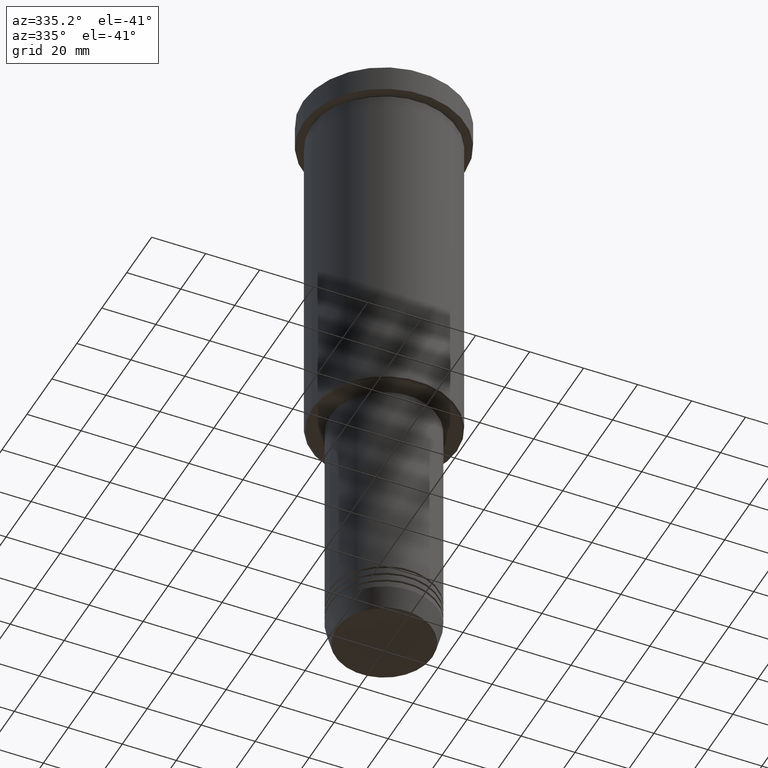
[diagram: clean part render]
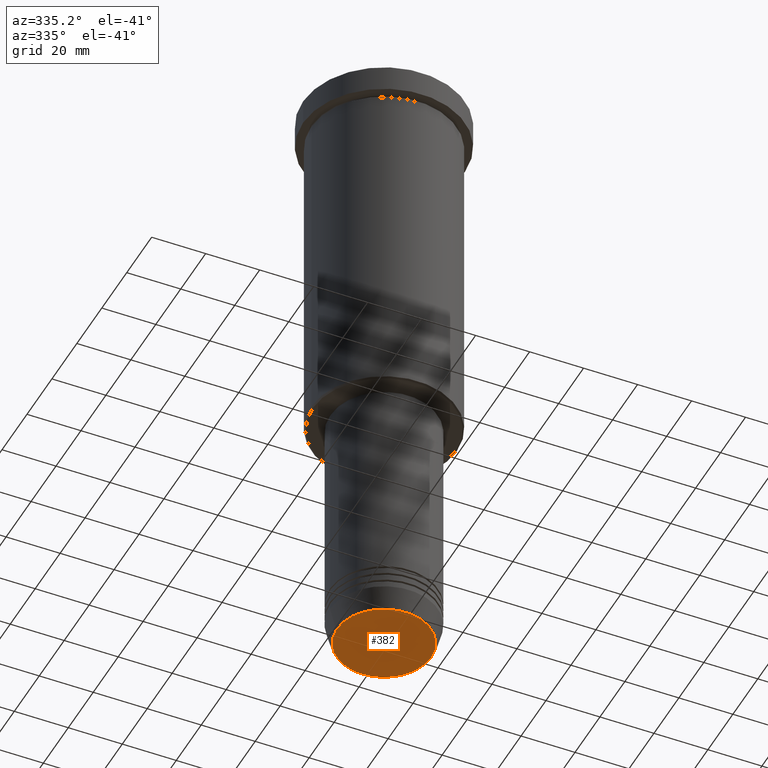
[diagram: same view with one face highlighted and labeled with its STEP entity id]
A machine part, auxiliary view. The second image highlights one B-rep face of the part: STEP entity #382.
In plain terms, the highlighted planar face has unit normal (0, -0, 1).
Its self-contained STEP definition (entity closure, byte-faithful):
#173 = VERTEX_POINT ( 'NONE', #824 ) ;
#198 = DIRECTION ( 'NONE',  ( 1.000000000000000000, 0.000000000000000000, 0.000000000000000000 ) ) ;
#239 = AXIS2_PLACEMENT_3D ( 'NONE', #662, #587, #327 ) ;
#255 = FACE_OUTER_BOUND ( 'NONE', #1021, .T. ) ;
#327 = DIRECTION ( 'NONE',  ( 1.000000000000000000, 0.000000000000000000, 0.000000000000000000 ) ) ;
#351 = AXIS2_PLACEMENT_3D ( 'NONE', #596, #989, #610 ) ;
#382 = ADVANCED_FACE ( 'NONE', ( #255 ), #626, .F. ) ;
#423 = ORIENTED_EDGE ( 'NONE', *, *, #1004, .T. ) ;
#432 = VERTEX_POINT ( 'NONE', #535 ) ;
#450 = AXIS2_PLACEMENT_3D ( 'NONE', #810, #629, #198 ) ;
#535 = CARTESIAN_POINT ( 'NONE',  ( 17.47274296656154036, 0.000000000000000000, -230.9999999999999716 ) ) ;
#543 = CIRCLE ( 'NONE', #450, 17.47274296656154036 ) ;
#587 = DIRECTION ( 'NONE',  ( 0.000000000000000000, 0.000000000000000000, -1.000000000000000000 ) ) ;
#596 = CARTESIAN_POINT ( 'NONE',  ( 0.000000000000000000, 0.000000000000000000, -230.9999999999999716 ) ) ;
#610 = DIRECTION ( 'NONE',  ( 1.000000000000000000, 0.000000000000000000, 0.000000000000000000 ) ) ;
#626 = PLANE ( 'NONE',  #351 ) ;
#629 = DIRECTION ( 'NONE',  ( 0.000000000000000000, 0.000000000000000000, -1.000000000000000000 ) ) ;
#662 = CARTESIAN_POINT ( 'NONE',  ( 0.000000000000000000, 0.000000000000000000, -230.9999999999999716 ) ) ;
#810 = CARTESIAN_POINT ( 'NONE',  ( 0.000000000000000000, 0.000000000000000000, -230.9999999999999716 ) ) ;
#821 = EDGE_CURVE ( 'NONE', #173, #432, #1052, .T. ) ;
#824 = CARTESIAN_POINT ( 'NONE',  ( -17.47274296656154036, 2.169366823916868503E-15, -230.9999999999999716 ) ) ;
#989 = DIRECTION ( 'NONE',  ( 0.000000000000000000, -0.000000000000000000, 1.000000000000000000 ) ) ;
#1004 = EDGE_CURVE ( 'NONE', #432, #173, #543, .T. ) ;
#1021 = EDGE_LOOP ( 'NONE', ( #423, #1041 ) ) ;
#1041 = ORIENTED_EDGE ( 'NONE', *, *, #821, .T. ) ;
#1052 = CIRCLE ( 'NONE', #239, 17.47274296656154036 ) ;